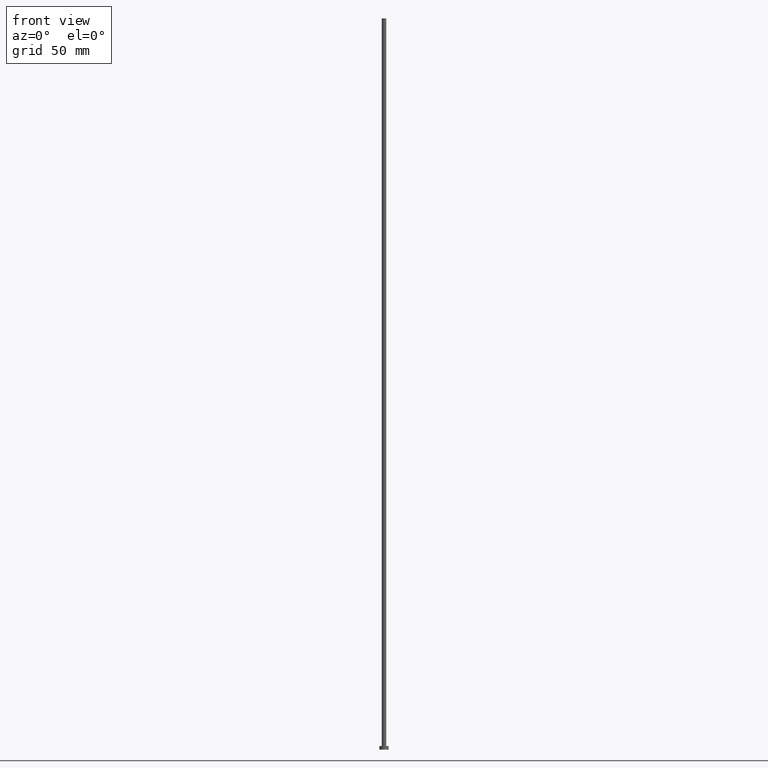
[diagram: clean part render]
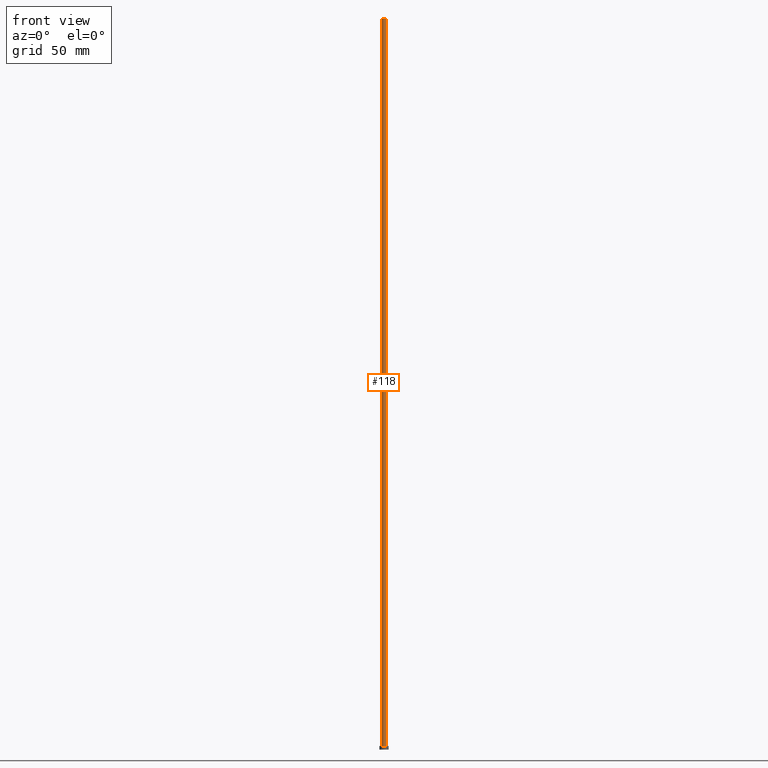
[diagram: same view with one face highlighted and labeled with its STEP entity id]
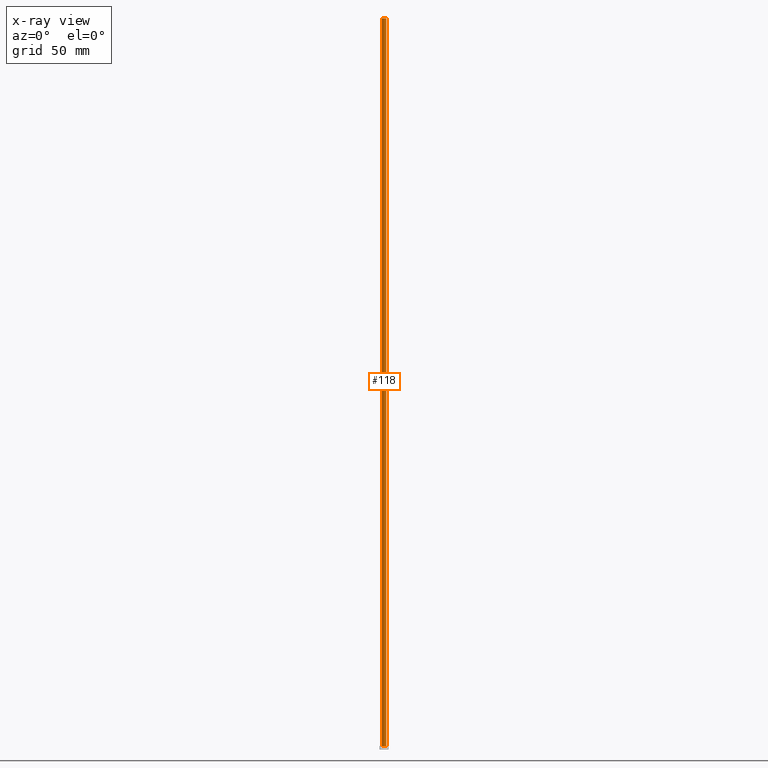
[diagram: x-ray of the same camera — body ghosted, the highlighted face saturated]
A machine part, front view. The second image highlights one B-rep face of the part: STEP entity #118.
The next image is the same camera in x-ray: the body ghosted, the highlighted face saturated — about 0% of this face is hidden behind the body in this view.
In plain terms, the highlighted cylindrical surface (edge-blend (fillet) strip) has radius 1.25 mm, axis along (-0, -0, -1).
Its self-contained STEP definition (entity closure, byte-faithful):
#2 = VERTEX_POINT ( 'NONE', #212 ) ;
#4 = DIRECTION ( 'NONE',  ( 0.000000000000000000, 0.000000000000000000, 1.000000000000000000 ) ) ;
#8 = VERTEX_POINT ( 'NONE', #213 ) ;
#18 = ORIENTED_EDGE ( 'NONE', *, *, #88, .T. ) ;
#19 = VECTOR ( 'NONE', #145, 1000.000000000000000 ) ;
#41 = EDGE_CURVE ( 'NONE', #2, #8, #146, .T. ) ;
#46 = DIRECTION ( 'NONE',  ( 0.000000000000000000, 0.000000000000000000, 1.000000000000000000 ) ) ;
#69 = CARTESIAN_POINT ( 'NONE',  ( 0.000000000000000000, 0.000000000000000000, 400.0000000000000000 ) ) ;
#82 = CIRCLE ( 'NONE', #124, 1.250000000000000000 ) ;
#88 = EDGE_CURVE ( 'NONE', #8, #232, #82, .T. ) ;
#90 = CARTESIAN_POINT ( 'NONE',  ( 0.000000000000000000, 0.000000000000000000, 400.0000000000000000 ) ) ;
#101 = EDGE_CURVE ( 'NONE', #142, #232, #217, .T. ) ;
#103 = CARTESIAN_POINT ( 'NONE',  ( -1.250000000000000000, 0.000000000000000000, 400.0000000000000000 ) ) ;
#108 = CIRCLE ( 'NONE', #225, 1.250000000000000000 ) ;
#113 = CARTESIAN_POINT ( 'NONE',  ( 1.250000000000000000, 1.530808498934191571E-16, 400.0000000000000000 ) ) ;
#115 = DIRECTION ( 'NONE',  ( -0.000000000000000000, -0.000000000000000000, -1.000000000000000000 ) ) ;
#118 = ADVANCED_FACE ( 'NONE', ( #251 ), #137, .T. ) ;
#124 = AXIS2_PLACEMENT_3D ( 'NONE', #197, #46, #152 ) ;
#125 = ORIENTED_EDGE ( 'NONE', *, *, #41, .T. ) ;
#137 = CYLINDRICAL_SURFACE ( 'NONE', #155, 1.250000000000000000 ) ;
#142 = VERTEX_POINT ( 'NONE', #234 ) ;
#145 = DIRECTION ( 'NONE',  ( -0.000000000000000000, -0.000000000000000000, -1.000000000000000000 ) ) ;
#146 = LINE ( 'NONE', #103, #19 ) ;
#152 = DIRECTION ( 'NONE',  ( 1.000000000000000000, 0.000000000000000000, 0.000000000000000000 ) ) ;
#154 = DIRECTION ( 'NONE',  ( -1.000000000000000000, 0.000000000000000000, 0.000000000000000000 ) ) ;
#155 = AXIS2_PLACEMENT_3D ( 'NONE', #69, #115, #154 ) ;
#162 = ORIENTED_EDGE ( 'NONE', *, *, #167, .F. ) ;
#167 = EDGE_CURVE ( 'NONE', #2, #142, #108, .T. ) ;
#177 = DIRECTION ( 'NONE',  ( -0.000000000000000000, -0.000000000000000000, -1.000000000000000000 ) ) ;
#185 = DIRECTION ( 'NONE',  ( 1.000000000000000000, 0.000000000000000000, 0.000000000000000000 ) ) ;
#192 = ORIENTED_EDGE ( 'NONE', *, *, #101, .F. ) ;
#197 = CARTESIAN_POINT ( 'NONE',  ( 0.000000000000000000, 0.000000000000000000, 2.000000000000000000 ) ) ;
#211 = VECTOR ( 'NONE', #177, 1000.000000000000000 ) ;
#212 = CARTESIAN_POINT ( 'NONE',  ( -1.250000000000000000, 0.000000000000000000, 400.0000000000000000 ) ) ;
#213 = CARTESIAN_POINT ( 'NONE',  ( -1.250000000000000000, 0.000000000000000000, 2.000000000000000000 ) ) ;
#217 = LINE ( 'NONE', #113, #211 ) ;
#222 = EDGE_LOOP ( 'NONE', ( #192, #162, #125, #18 ) ) ;
#225 = AXIS2_PLACEMENT_3D ( 'NONE', #90, #4, #185 ) ;
#232 = VERTEX_POINT ( 'NONE', #246 ) ;
#234 = CARTESIAN_POINT ( 'NONE',  ( 1.250000000000000000, 1.530808498934191571E-16, 400.0000000000000000 ) ) ;
#246 = CARTESIAN_POINT ( 'NONE',  ( 1.250000000000000000, 1.530808498934191571E-16, 2.000000000000000000 ) ) ;
#251 = FACE_OUTER_BOUND ( 'NONE', #222, .T. ) ;